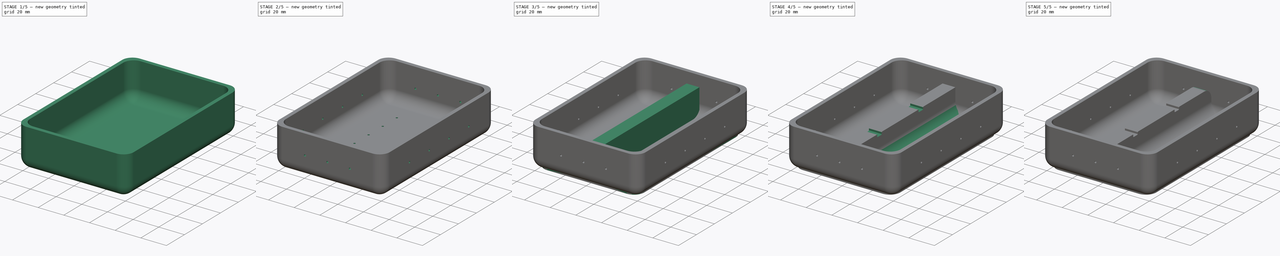
[diagram: build sequence overview — one tinted view per stage of 5, left to right]
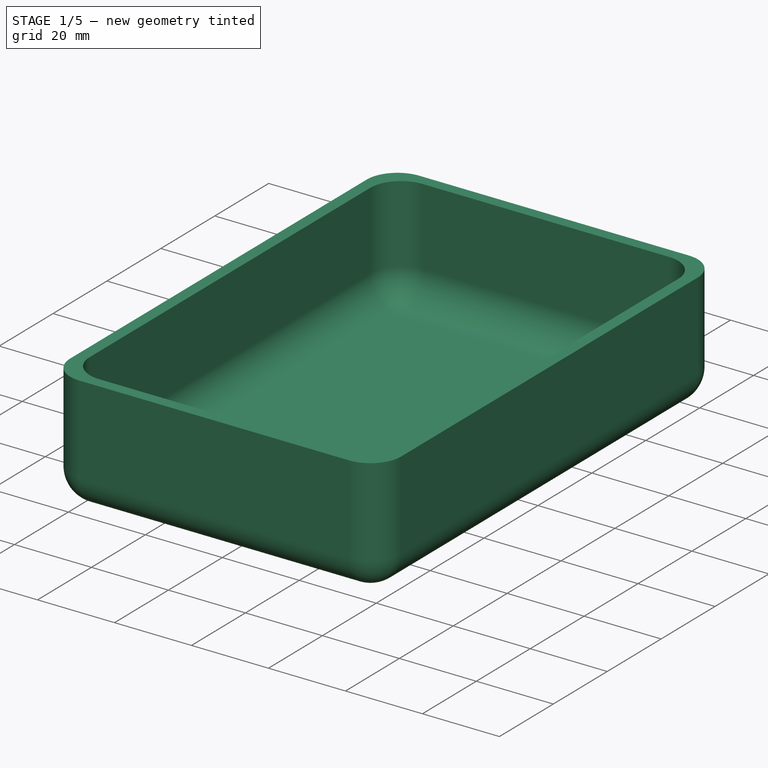
[diagram: stage 1 of 5 — iso view after this stage's code; geometry added in this stage tinted green]
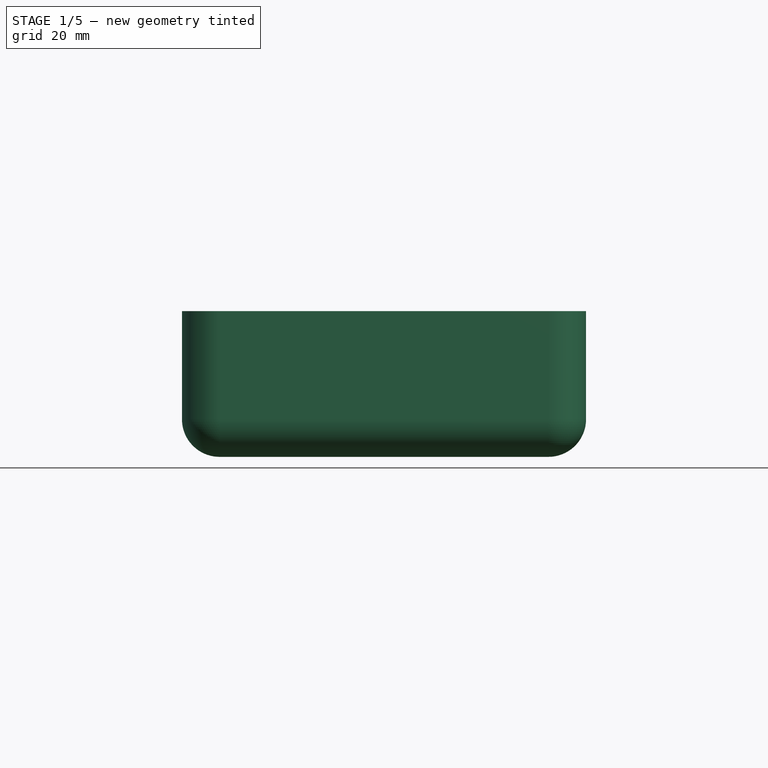
[diagram: stage 1 of 5 — front view after this stage's code; geometry added in this stage tinted green]
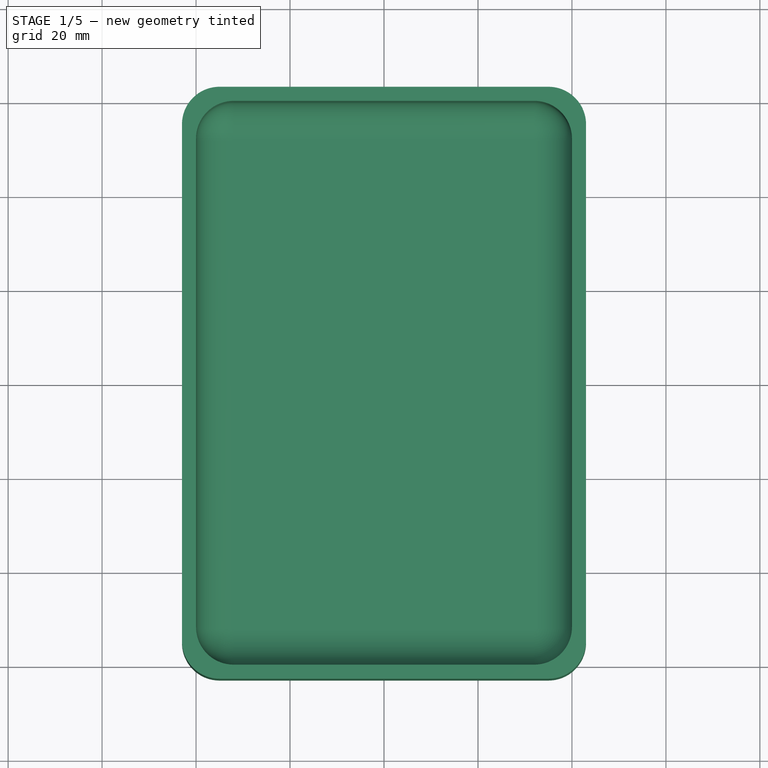
[diagram: stage 1 of 5 — top view after this stage's code; geometry added in this stage tinted green]
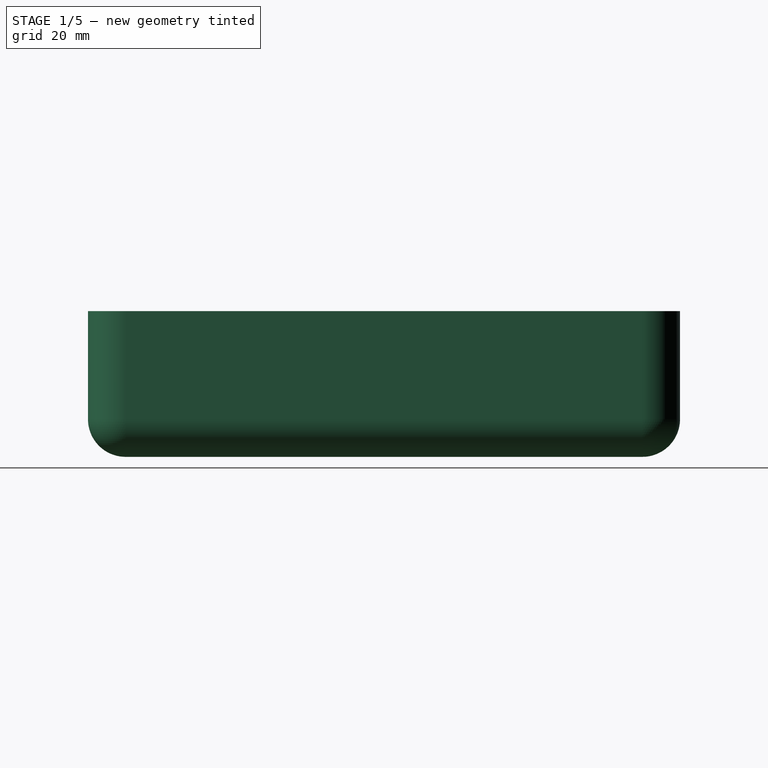
[diagram: stage 1 of 5 — right view after this stage's code; geometry added in this stage tinted green]
FCSTD DOCUMENT  (FreeCAD 0.19R24212 (Git))
Label: tempeh-mold-rectangle
License: All rights reserved
LicenseURL: http://en.wikipedia.org/wiki/All_rights_reserved
objects: Sketcher::SketchObject×9, PartDesign::Pocket×6, PartDesign::Fillet×5, PartDesign::Pad×3, PartDesign::Mirrored×2, PartDesign::Body×2, Spreadsheet::Sheet×1
note: 41 computed .brp shape members not serialized (recipe doc carries the construction recipe); baked Part::Feature solids carry a one-line shape summary decoded from their .brp

FEATURE [Spreadsheet::Sheet] Spreadsheet  label="d"
  cells = A1=thickness; B1(thickness)==3mm; A2=width; B2(width)==80mm; A3=height; B3(height)==28mm; A4=length; B4(length)==120mm; A5=filet; B5(filet)==8mm; A6=filet_sm; B6(filet_sm)==0.5mm; A7=handle_width; B7(handle_width)==10mm; A8=handle_height; B8(handle_height)==20mm; A9=slot_width; B9(slot_width)==5mm; A10=slot_height; B10(slot_height)==2mm; A11=holes_spacing; B11(holes_spacing)==20mm; A12=holes_dia; B12(holes_dia)==1.5mm; A13=inner_margin; B13(inner_margin)==2mm; A14=lid_holes_number; B14(lid_holes_number)=4; A15=lid_holes_spacing; B15(lid_holes_spacing)==(length - inner_margin) / (lid_holes_number + 1); A16=face_length_holes_number; B16(face_length_holes_number)=4; A17=face_length_holes_spacing; B17(face_length_holes_spacing)==(length + thickness * 2 - filet * 2) / (face_length_holes_number + 1); A18=face_width_holes_number; B18(face_width_holes_number)=3; A19=face_width_holes_spacing; B19(face_width_holes_spacing)==(width + thickness * 2 - filet * 2) / (face_width_holes_number + 1); A20=back_holes_number; B20(back_holes_number)=6; A21=back_holes_spacing; B21(back_holes_spacing)==(length + thickness * 2 - filet * 2) / (back_holes_number + 1); A23=outerwidth; B23(outerwidth)==width + thickness * 2; A24=outerlength; B24(outerlength)==length + thickness * 2; A25=outerheight; B25(outerheight)==height + thickness; A27=volume; B27==width * height * length
FEATURE [Sketcher::SketchObject] Sketch
  FullyConstrained = true
  MapMode = 5
  Support = -> [XY_Plane]
  expr: Constraints[7] = <<d>>.outerlength
  expr: Constraints[6] = <<d>>.outerwidth
  sketch-geometry (4):
    g0: LineSegment StartX=-43 StartY=63 StartZ=0 EndX=43 EndY=63 EndZ=0
    g1: LineSegment StartX=43 StartY=63 StartZ=0 EndX=43 EndY=-63 EndZ=0
    g2: LineSegment StartX=43 StartY=-63 StartZ=0 EndX=-43 EndY=-63 EndZ=0
    g3: LineSegment StartX=-43 StartY=-63 StartZ=0 EndX=-43 EndY=63 EndZ=0
  constraints (10):
    c: Coincident(g0,g1)
    c: Coincident(g1,g2)
    c: Coincident(g2,g3)
    c: Coincident(g3,g0)
    c: Horizontal(g2)
    c: Vertical(g1)
    c: DistanceX(g2,g2) = 86
    c: DistanceY(g3,g3) = 126
    c: Symmetric(g0,g0,g-2)
    c: Symmetric(g2,g0,g-1)
FEATURE [PartDesign::Pad] Pad
  Direction = (1,1,1)
  Length = 31
  Length2 = 100
  Profile = -> Sketch
  Type = 0
  expr: Length = <<d>>.outerheight
FEATURE [Sketcher::SketchObject] Sketch001
  FullyConstrained = true
  MapMode = 5
  Placement = pos=(0,0,31) rot=(0,0,1;0rad)
  Support = -> [Pad]
  expr: Constraints[9] = <<d>>.length
  expr: Constraints[8] = <<d>>.width
  sketch-geometry (4):
    g0: LineSegment StartX=-40 StartY=60 StartZ=0 EndX=40 EndY=60 EndZ=0
    g1: LineSegment StartX=40 StartY=60 StartZ=0 EndX=40 EndY=-60 EndZ=0
    g2: LineSegment StartX=40 StartY=-60 StartZ=0 EndX=-40 EndY=-60 EndZ=0
    g3: LineSegment StartX=-40 StartY=-60 StartZ=0 EndX=-40 EndY=60 EndZ=0
  constraints (10):
    c: Coincident(g0,g1)
    c: Coincident(g1,g2)
    c: Coincident(g2,g3)
    c: Coincident(g3,g0)
    c: Horizontal(g2)
    c: Vertical(g3)
    c: Symmetric(g0,g0,g-2)
    c: Symmetric(g0,g1,g-1)
    c: DistanceX(g2,g2) = 80
    c: DistanceY(g3,g3) = 120
FEATURE [PartDesign::Pocket] Pocket
  BaseFeature = -> Pad
  Length = 28
  Length2 = 100
  Profile = -> Sketch001
  Type = 0
  expr: Length = <<d>>.height
FEATURE [PartDesign::Fillet] Fillet
  Base = -> Pocket [Edge8,Edge20,Edge21,Edge23,Edge22,Edge24,Edge17,Edge19,Edge18,Edge2,Edge1,Edge5,Edge6,Edge3,Edge9,Edge11]
  BaseFeature = -> Pocket
  Radius = 8
  SupportTransform = false
  expr: Radius = <<d>>.filet
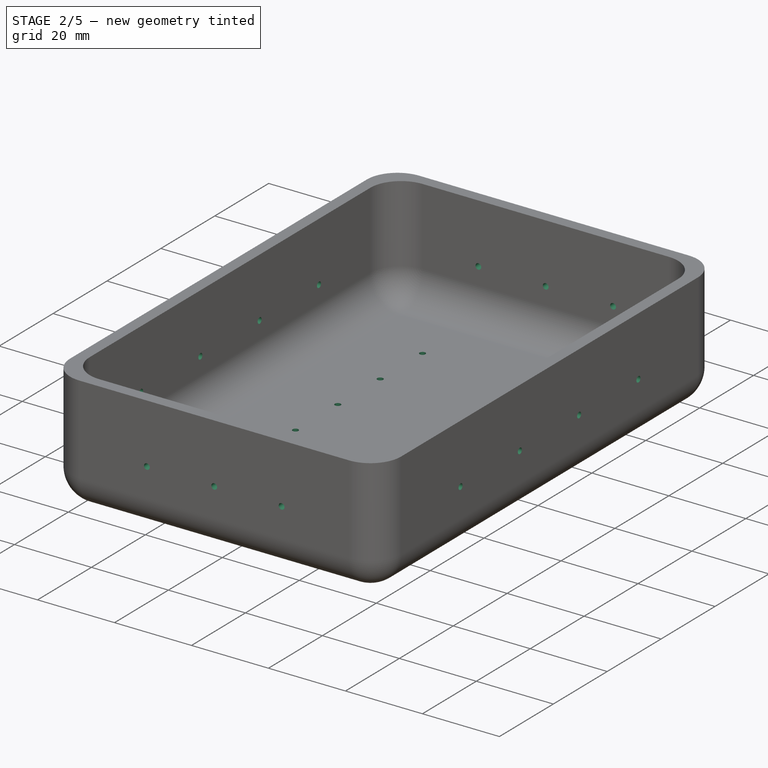
[diagram: stage 2 of 5 — iso view after this stage's code; geometry added in this stage tinted green]
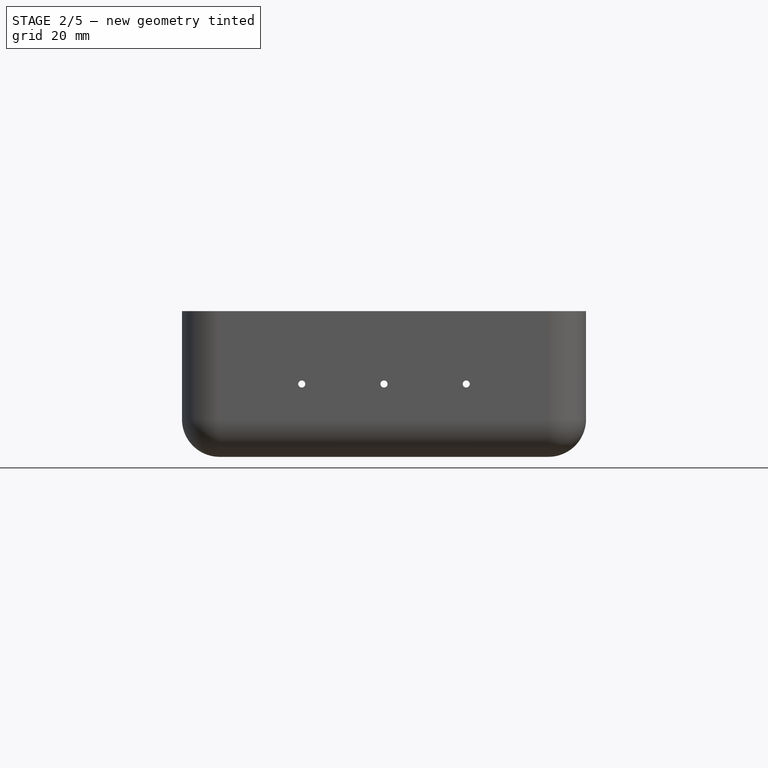
[diagram: stage 2 of 5 — front view after this stage's code; geometry added in this stage tinted green]
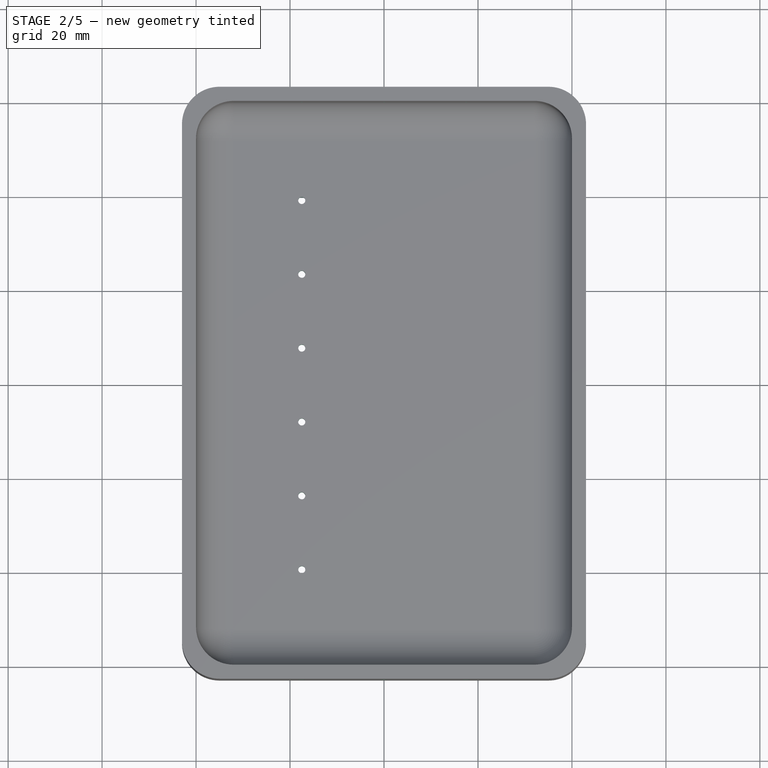
[diagram: stage 2 of 5 — top view after this stage's code; geometry added in this stage tinted green]
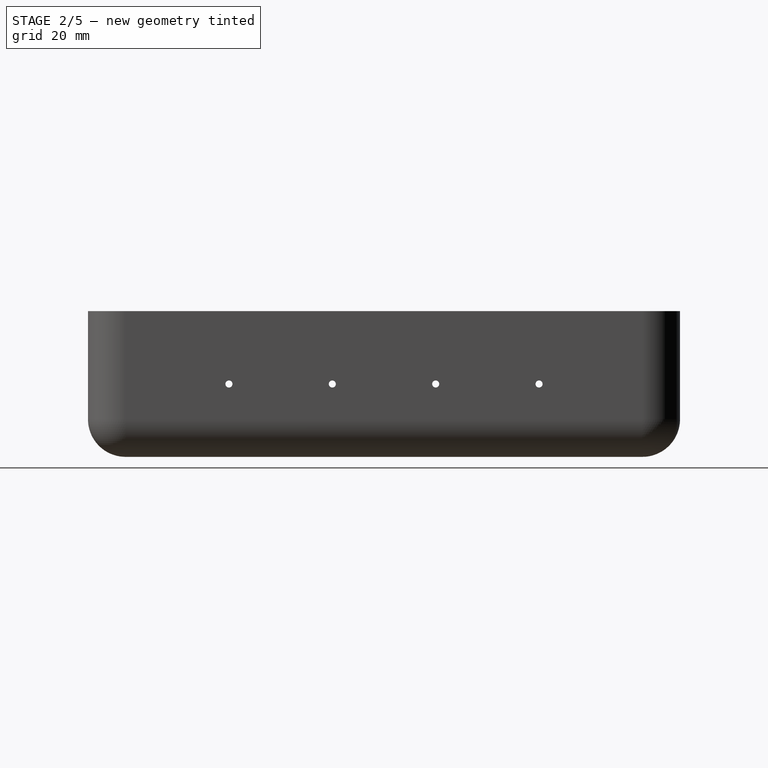
[diagram: stage 2 of 5 — right view after this stage's code; geometry added in this stage tinted green]
FEATURE [PartDesign::Body] Body001  label="lid"
  Group = -> [Sketch002,Pad001,Sketch003,Pad002,Fillet001,Fillet002,Sketch004,Pocket001,Fillet003,Fillet004,Sketch005,Pocket002,Mirrored]
  Origin = -> Origin001
  Placement = pos=(0,0,56) rot=(0,0,1;0rad)
  Tip = -> Mirrored
FEATURE [Sketcher::SketchObject] Sketch006
  ExternalGeometry = -> [Fillet]
  FullyConstrained = false
  MapMode = 5
  Placement = pos=(-43,0,0) rot=(0.57735,-0.57735,-0.57735;2.0944rad)
  Support = -> [Fillet]
  expr: Constraints[7] = <<d>>.holes_dia
  expr: Constraints[13] = <<d>>.face_length_holes_spacing
  expr: Constraints[12] = <<d>>.face_length_holes_spacing
  expr: Constraints[14] = <<d>>.face_length_holes_spacing
  expr: Constraints[15] = <<d>>.face_length_holes_spacing
  sketch-geometry (6):
    g0: LineSegment StartX=-55 StartY=15.5 StartZ=0 EndX=55 EndY=15.5 EndZ=0
    g1: LineSegment StartX=0 StartY=31 StartZ=0 EndX=0 EndY=0 EndZ=0
    g2: Circle CenterX=-33 CenterY=15.5 CenterZ=0 NormalX=0 NormalY=0 NormalZ=1 AngleXU=0 Radius=0.75
    g3: Circle CenterX=33 CenterY=15.5 CenterZ=0 NormalX=0 NormalY=0 NormalZ=1 AngleXU=0 Radius=0.75
    g4: Circle CenterX=-11 CenterY=15.5 CenterZ=0 NormalX=0 NormalY=0 NormalZ=1 AngleXU=0 Radius=0.75
    g5: Circle CenterX=11 CenterY=15.5 CenterZ=0 NormalX=0 NormalY=0 NormalZ=1 AngleXU=0 Radius=0.75
  constraints (16):
    c: PointOnObject(g0,g-3)
    c: PointOnObject(g0,g-4)
    c: Horizontal(g0)
    c: PointOnObject(g1,g-5)
    c: Coincident(g1,g-1)
    c: Symmetric(g1,g-1,g0)
    c: PointOnObject(g2,g0)
    c: Diameter(g2) = 1.5
    c: Equal(g2,g3) = 1.5
    c: PointOnObject(g3,g0)
    c: PointOnObject(g4,g0)
    c: PointOnObject(g5,g0)
    c: DistanceX(g0,g2) = 22
    c: DistanceX(g2,g4) = 22
    c: DistanceX(g4,g5) = 22
    c: DistanceX(g5,g3) = 22
FEATURE [PartDesign::Pocket] Pocket003
  BaseFeature = -> Fillet
  Length = 5
  Length2 = 100
  Profile = -> Sketch006
  Type = 1
FEATURE [Sketcher::SketchObject] Sketch007
  ExternalGeometry = -> [Pocket003]
  FullyConstrained = true
  MapMode = 5
  Placement = pos=(0,-63,0) rot=(1,0,0;1.5708rad)
  Support = -> [Pocket003]
  expr: Constraints[7] = <<d>>.holes_dia
  expr: Constraints[13] = <<d>>.face_width_holes_spacing
  expr: Constraints[10] = <<d>>.face_width_holes_spacing
  expr: Constraints[11] = <<d>>.face_width_holes_spacing
  sketch-geometry (5):
    g0: LineSegment StartX=-35 StartY=15.5 StartZ=0 EndX=35 EndY=15.5 EndZ=0
    g1: LineSegment StartX=0 StartY=31 StartZ=0 EndX=0 EndY=0 EndZ=0
    g2: Circle CenterX=-17.5 CenterY=15.5 CenterZ=0 NormalX=0 NormalY=0 NormalZ=1 AngleXU=0 Radius=0.75
    g3: Circle CenterX=7e-16 CenterY=15.5 CenterZ=0 NormalX=0 NormalY=0 NormalZ=1 AngleXU=0 Radius=0.75
    g4: Circle CenterX=17.5 CenterY=15.5 CenterZ=0 NormalX=0 NormalY=0 NormalZ=1 AngleXU=0 Radius=0.75
  constraints (15):
    c: PointOnObject(g0,g-3)
    c: PointOnObject(g0,g-4)
    c: PointOnObject(g1,g-5)
    c: Coincident(g1,g-1)
    c: Symmetric(g0,g0,g1)
    c: Symmetric(g1,g-1,g0)
    c: PointOnObject(g2,g0)
    c: Diameter(g2) = 1.5
    c: Equal(g2,g3) = 1.5
    c: PointOnObject(g3,g0)
    c: DistanceX(g0,g2) = 17.5
    c: DistanceX(g2,g3) = 17.5
    c: PointOnObject(g4,g0)
    c: DistanceX(g3,g4) = 17.5
    c: Equal(g4,g3)
FEATURE [PartDesign::Pocket] Pocket004
  BaseFeature = -> Pocket003
  Length = 5
  Length2 = 100
  Profile = -> Sketch007
  Type = 1
FEATURE [Sketcher::SketchObject] Sketch008
  ExternalGeometry = -> [Pocket004]
  FullyConstrained = true
  MapMode = 5
  Placement = pos=(0,0,0) rot=(1,0,0;3.14159rad)
  Support = -> [Pocket004]
  expr: Constraints[19] = <<d>>.back_holes_spacing
  expr: Constraints[18] = <<d>>.back_holes_spacing
  expr: Constraints[15] = <<d>>.back_holes_spacing
  expr: Constraints[14] = <<d>>.back_holes_spacing
  expr: Constraints[8] = <<d>>.back_holes_spacing
  expr: Constraints[13] = <<d>>.back_holes_spacing
  expr: Constraints[7] = <<d>>.holes_dia
  sketch-geometry (8):
    g0: LineSegment StartX=-17.5 StartY=55 StartZ=0 EndX=-17.5 EndY=-55 EndZ=0
    g1: LineSegment StartX=-35 StartY=0 StartZ=0 EndX=0 EndY=0 EndZ=0
    g2: Circle CenterX=-17.5 CenterY=39.2857 CenterZ=0 NormalX=0 NormalY=0 NormalZ=1 AngleXU=0 Radius=0.75
    g3: Circle CenterX=-17.5 CenterY=23.5714 CenterZ=0 NormalX=0 NormalY=0 NormalZ=1 AngleXU=0 Radius=0.75
    g4: Circle CenterX=-17.5 CenterY=7.85714 CenterZ=0 NormalX=0 NormalY=0 NormalZ=1 AngleXU=0 Radius=0.75
    g5: Circle CenterX=-17.5 CenterY=-7.85714 CenterZ=0 NormalX=0 NormalY=0 NormalZ=1 AngleXU=0 Radius=0.75
    g6: Circle CenterX=-17.5 CenterY=-23.5714 CenterZ=0 NormalX=0 NormalY=0 NormalZ=1 AngleXU=0 Radius=0.75
    g7: Circle CenterX=-17.5 CenterY=-39.2857 CenterZ=0 NormalX=0 NormalY=0 NormalZ=1 AngleXU=0 Radius=0.75
  constraints (24):
    c: PointOnObject(g0,g-3)
    c: PointOnObject(g0,g-5)
    c: Vertical(g0)
    c: PointOnObject(g1,g-4)
    c: Coincident(g1,g-1)
    c: Symmetric(g1,g-1,g0)
    c: PointOnObject(g2,g0)
    c: Diameter(g2) = 1.5
    c: DistanceY(g2,g0) = 15.7143
    c: Equal(g2,g3) = 1.5
    c: PointOnObject(g3,g0)
    c: PointOnObject(g4,g0)
    c: PointOnObject(g5,g0)
    c: DistanceY(g3,g2) = 15.7143
    c: DistanceY(g4,g3) = 15.7143
    c: DistanceY(g5,g4) = 15.7143
    c: PointOnObject(g6,g0)
    c: PointOnObject(g7,g0)
    c: DistanceY(g6,g5) = 15.7143
    c: DistanceY(g7,g6) = 15.7143
    c: Equal(g4,g5)
    c: Equal(g5,g6)
    c: Equal(g6,g7)
    c: Equal(g7,g2)
FEATURE [PartDesign::Pocket] Pocket005
  BaseFeature = -> Pocket004
  Length = 5
  Length2 = 100
  Profile = -> Sketch008
  Type = 1
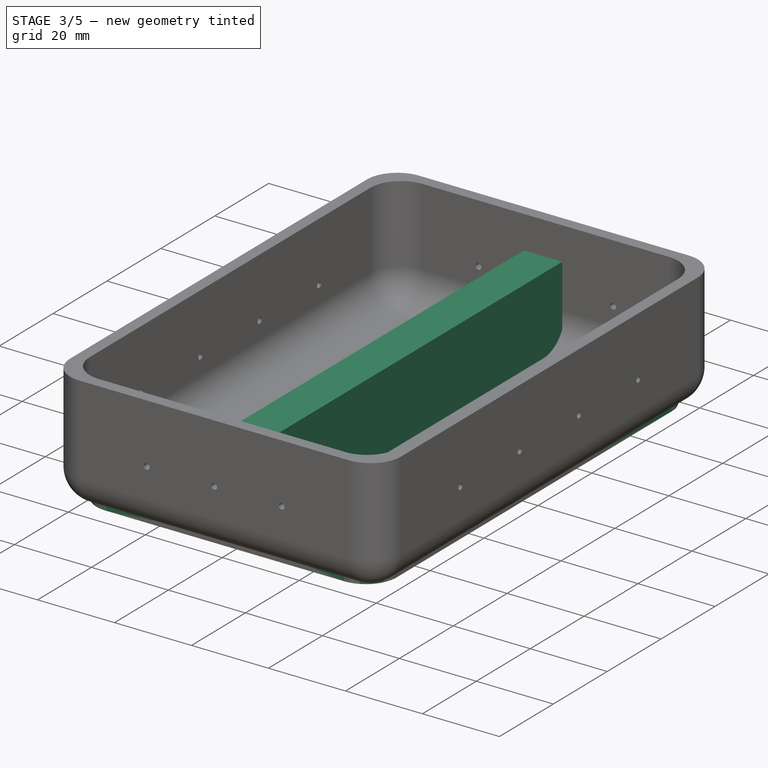
[diagram: stage 3 of 5 — iso view after this stage's code; geometry added in this stage tinted green]
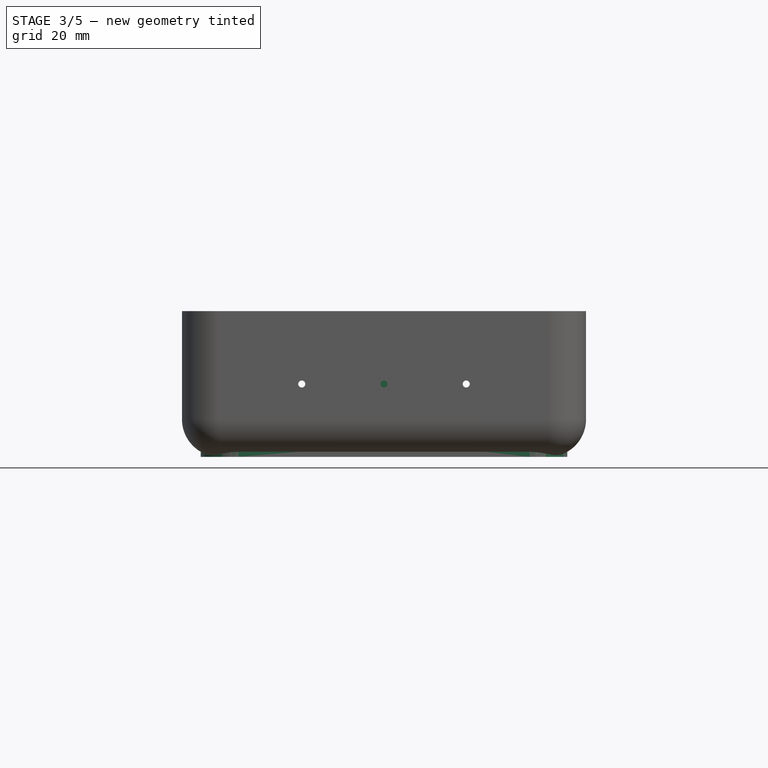
[diagram: stage 3 of 5 — front view after this stage's code; geometry added in this stage tinted green]
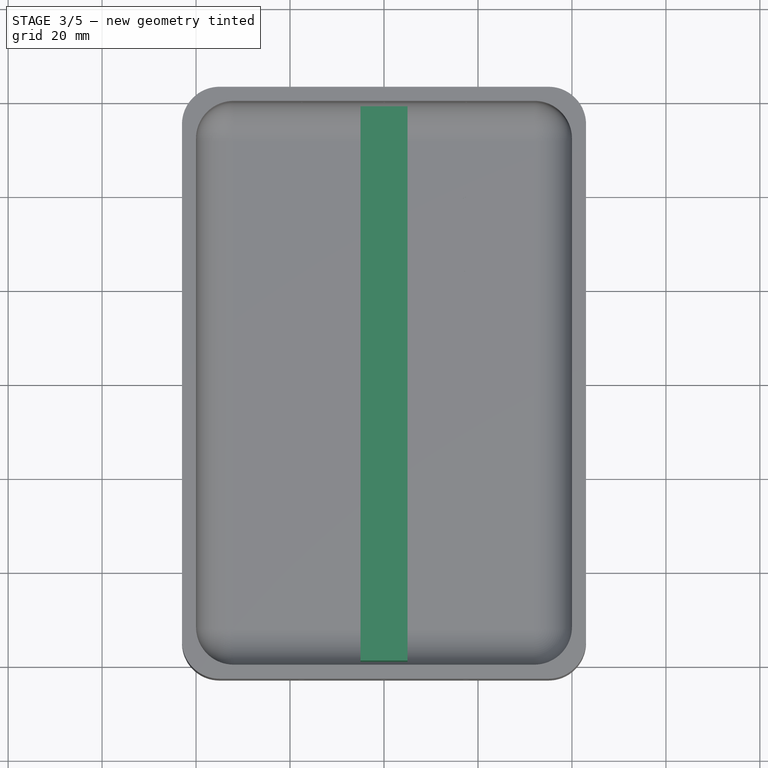
[diagram: stage 3 of 5 — top view after this stage's code; geometry added in this stage tinted green]
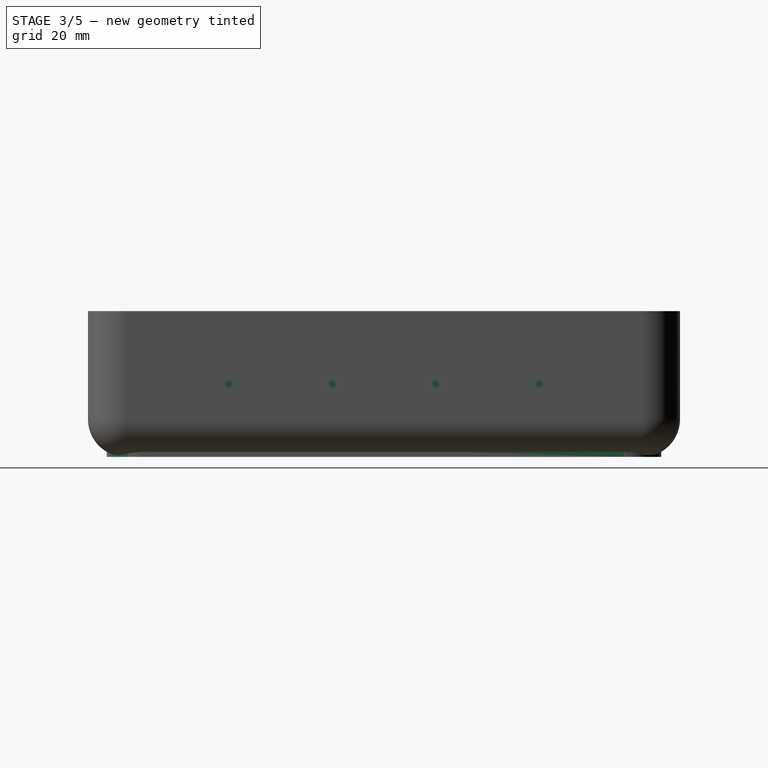
[diagram: stage 3 of 5 — right view after this stage's code; geometry added in this stage tinted green]
FEATURE [Sketcher::SketchObject] Sketch002
  FullyConstrained = true
  MapMode = 5
  Support = -> [XY_Plane001]
  expr: Constraints[7] = <<d>>.length - <<d>>.inner_margin
  expr: Constraints[6] = <<d>>.width - <<d>>.inner_margin
  sketch-geometry (4):
    g0: LineSegment StartX=-39 StartY=59 StartZ=0 EndX=39 EndY=59 EndZ=0
    g1: LineSegment StartX=39 StartY=59 StartZ=0 EndX=39 EndY=-59 EndZ=0
    g2: LineSegment StartX=39 StartY=-59 StartZ=0 EndX=-39 EndY=-59 EndZ=0
    g3: LineSegment StartX=-39 StartY=-59 StartZ=0 EndX=-39 EndY=59 EndZ=0
  constraints (10):
    c: Coincident(g0,g1)
    c: Coincident(g1,g2)
    c: Coincident(g2,g3)
    c: Coincident(g3,g0)
    c: Horizontal(g2)
    c: Vertical(g1)
    c: DistanceX(g0,g0) = 78
    c: DistanceY(g3,g3) = 118
    c: Symmetric(g0,g0,g-2)
    c: Symmetric(g2,g0,g-1)
FEATURE [PartDesign::Pad] Pad001
  Direction = (1,1,1)
  Length = 3
  Length2 = 100
  Profile = -> Sketch002
  Type = 0
  expr: Length = <<d>>.thickness
FEATURE [Sketcher::SketchObject] Sketch003
  FullyConstrained = true
  MapMode = 5
  Placement = pos=(0,0,3) rot=(0,0,1;0rad)
  Support = -> [Pad001]
  expr: Constraints[7] = <<d>>.handle_width
  expr: Constraints[6] = <<d>>.length - <<d>>.inner_margin
  sketch-geometry (4):
    g0: LineSegment StartX=-5 StartY=59 StartZ=0 EndX=5 EndY=59 EndZ=0
    g1: LineSegment StartX=5 StartY=59 StartZ=0 EndX=5 EndY=-59 EndZ=0
    g2: LineSegment StartX=5 StartY=-59 StartZ=0 EndX=-5 EndY=-59 EndZ=0
    g3: LineSegment StartX=-5 StartY=-59 StartZ=0 EndX=-5 EndY=59 EndZ=0
  constraints (10):
    c: Coincident(g0,g1)
    c: Coincident(g1,g2)
    c: Coincident(g2,g3)
    c: Coincident(g3,g0)
    c: Horizontal(g2)
    c: Vertical(g1)
    c: DistanceY(g3,g3) = 118
    c: DistanceX(g0,g0) = 10
    c: Symmetric(g0,g0,g-2)
    c: Symmetric(g2,g0,g-1)
FEATURE [PartDesign::Pad] Pad002
  BaseFeature = -> Pad001
  Direction = (1,1,1)
  Length = 20
  Length2 = 100
  Profile = -> Sketch003
  Type = 0
  expr: Length = <<d>>.handle_height
FEATURE [PartDesign::Fillet] Fillet001
  Base = -> Pad002 [Edge10,Edge2,Edge1,Edge7]
  BaseFeature = -> Pad002
  Radius = 8
  SupportTransform = false
  expr: Radius = <<d>>.filet
FEATURE [PartDesign::Mirrored] Mirrored001
  BaseFeature = -> Pocket005
  MirrorPlane = -> Sketch008 [V_Axis]
  Originals = -> [Pocket005]
FEATURE [PartDesign::Body] Body  label="box"
  Group = -> [Sketch,Pad,Sketch001,Pocket,Fillet,Sketch006,Pocket003,Sketch007,Pocket004,Sketch008,Pocket005,Mirrored001]
  Origin = -> Origin
  Tip = -> Mirrored001
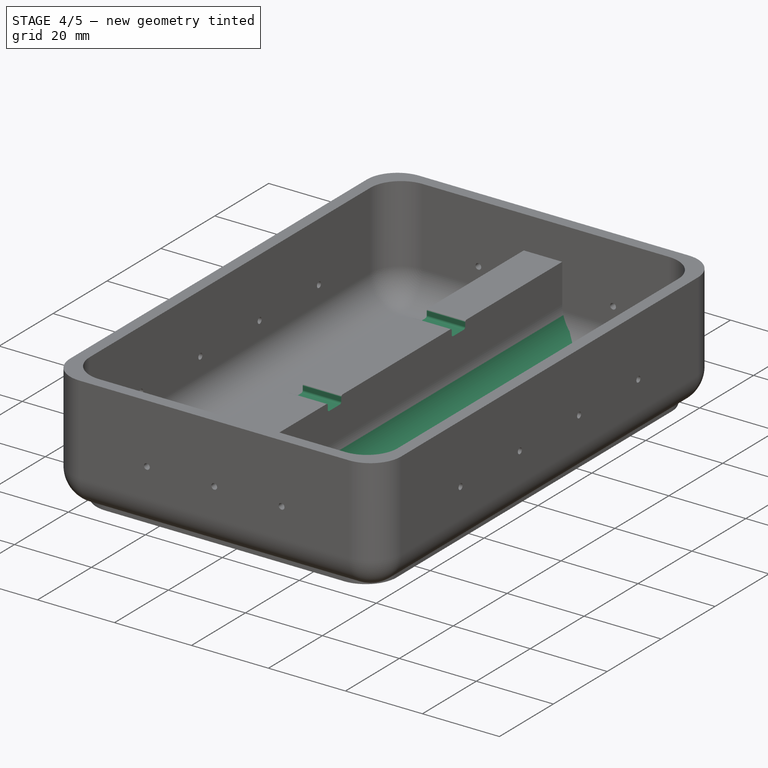
[diagram: stage 4 of 5 — iso view after this stage's code; geometry added in this stage tinted green]
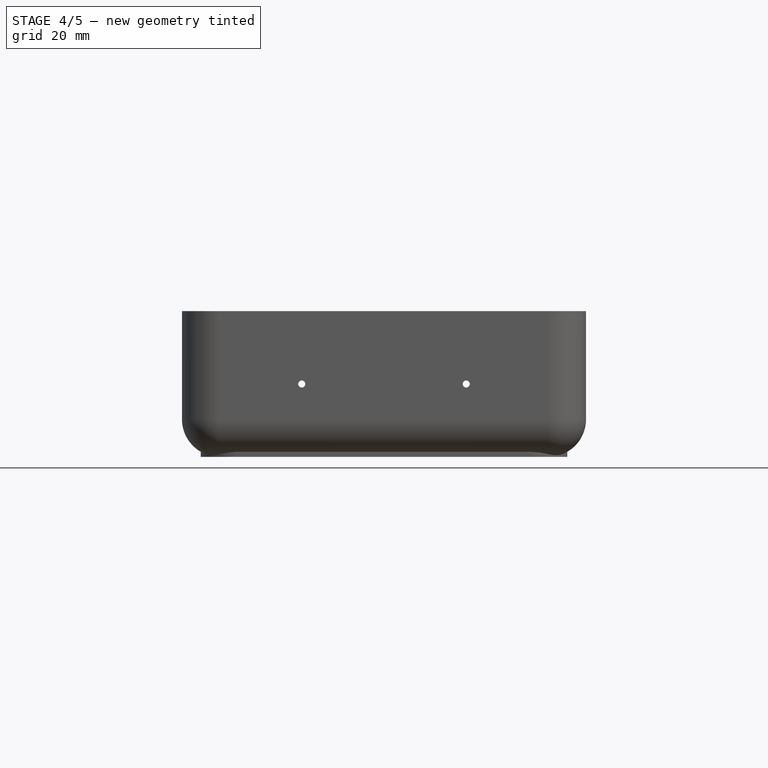
[diagram: stage 4 of 5 — front view after this stage's code; geometry added in this stage tinted green]
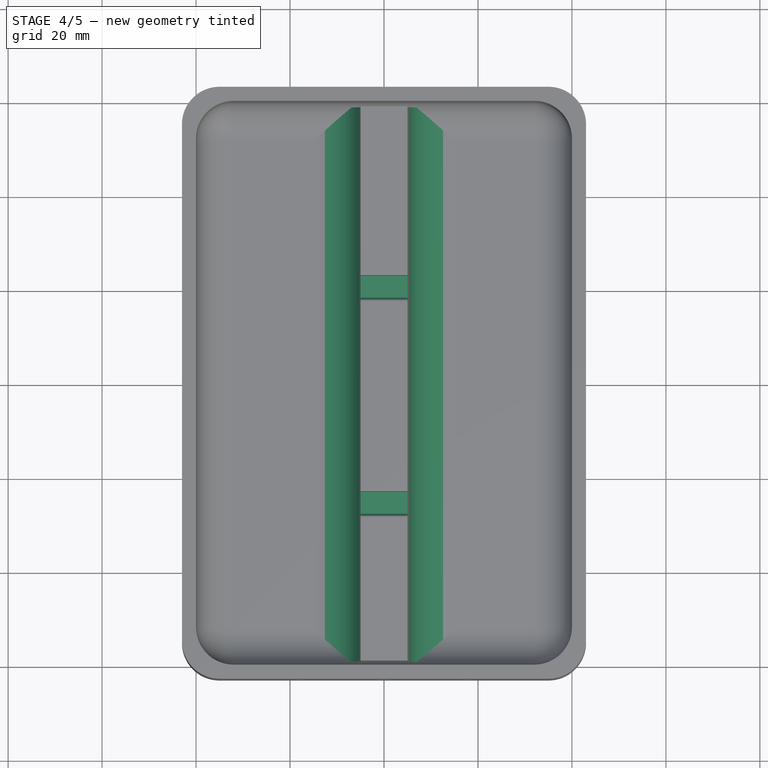
[diagram: stage 4 of 5 — top view after this stage's code; geometry added in this stage tinted green]
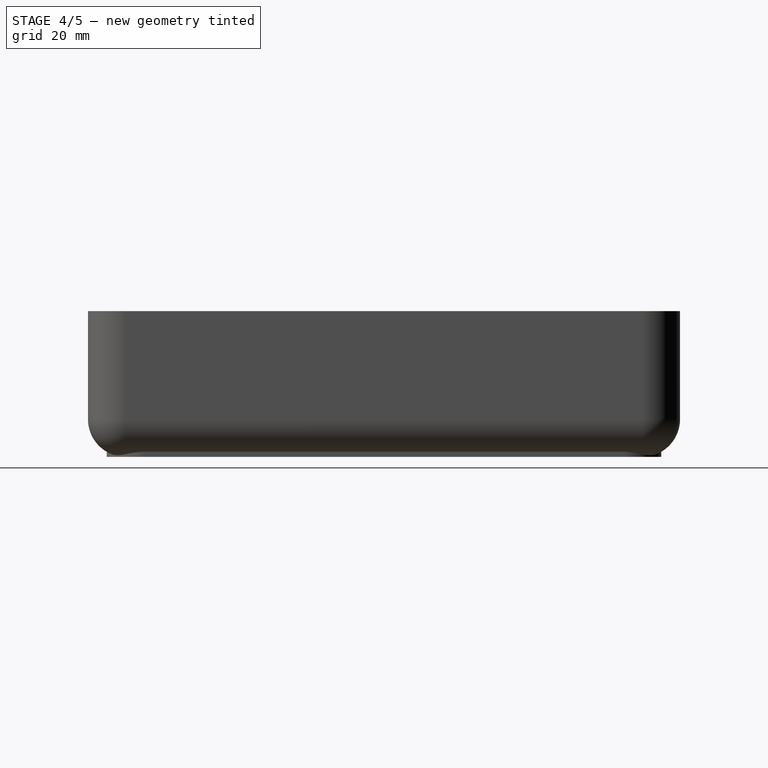
[diagram: stage 4 of 5 — right view after this stage's code; geometry added in this stage tinted green]
FEATURE [PartDesign::Fillet] Fillet002
  Base = -> Fillet001 [Edge21,Edge24]
  BaseFeature = -> Fillet001
  Radius = 10
  SupportTransform = false
  expr: Radius = <<d>>.handle_height * 0.5
FEATURE [Sketcher::SketchObject] Sketch004
  ExternalGeometry = -> [Fillet002]
  FullyConstrained = true
  MapMode = 5
  Placement = pos=(0,0,23) rot=(0,0,1;0rad)
  Support = -> [Fillet002]
  expr: Constraints[24] = (<<d>>.length - 2mm - <<d>>.slot_width * 2) / 3
  expr: Constraints[9] = <<d>>.slot_width
  expr: Constraints[8] = <<d>>.handle_width
  sketch-geometry (10):
    g0: LineSegment StartX=-5 StartY=23 StartZ=0 EndX=5 EndY=23 EndZ=0
    g1: LineSegment StartX=5 StartY=23 StartZ=0 EndX=5 EndY=18 EndZ=0
    g2: LineSegment StartX=5 StartY=18 StartZ=0 EndX=-5 EndY=18 EndZ=0
    g3: LineSegment StartX=-5 StartY=18 StartZ=0 EndX=-5 EndY=23 EndZ=0
    g4: LineSegment StartX=-5 StartY=-28 StartZ=0 EndX=5 EndY=-28 EndZ=0
    g5: LineSegment StartX=5 StartY=-28 StartZ=0 EndX=5 EndY=-23 EndZ=0
    g6: LineSegment StartX=5 StartY=-23 StartZ=0 EndX=-5 EndY=-23 EndZ=0
    g7: LineSegment StartX=-5 StartY=-23 StartZ=0 EndX=-5 EndY=-28 EndZ=0
    g8: LineSegment StartX=-5 StartY=59 StartZ=0 EndX=-5 EndY=23 EndZ=0
    g9: LineSegment StartX=-5 StartY=-23 StartZ=0 EndX=-5 EndY=-59 EndZ=0
  constraints (26):
    c: Coincident(g0,g1)
    c: Coincident(g1,g2)
    c: Coincident(g2,g3)
    c: Coincident(g3,g0)
    c: Horizontal(g2)
    c: Vertical(g1)
    c: Vertical(g3)
    c: Symmetric(g0,g0,g-2)
    c: DistanceX(g0,g0) = 10
    c: DistanceY(g3,g3) = 5
    c: Coincident(g4,g5)
    c: Coincident(g5,g6)
    c: Coincident(g6,g7)
    c: Coincident(g7,g4)
    c: Horizontal(g6)
    c: Vertical(g5)
    c: Vertical(g7)
    c: Equal(g4,g0)
    c: Equal(g3,g7)
    c: Symmetric(g4,g4,g-2)
    c: Coincident(g8,g-3)
    c: Coincident(g8,g0)
    c: Coincident(g9,g6)
    c: Coincident(g9,g-4)
    c: DistanceY(g8,g8) = 36
    c: Equal(g9,g8)
FEATURE [PartDesign::Pocket] Pocket001
  BaseFeature = -> Fillet002
  Length = 2
  Length2 = 100
  Profile = -> Sketch004
  Type = 0
  expr: Length = <<d>>.slot_height
FEATURE [PartDesign::Fillet] Fillet003
  Base = -> Pocket001 [Edge51,Edge66,Edge68,Edge67,Edge69,Edge70,Edge71,Edge72]
  BaseFeature = -> Pocket001
  Radius = 0.5
  SupportTransform = false
  expr: Radius = <<d>>.filet_sm
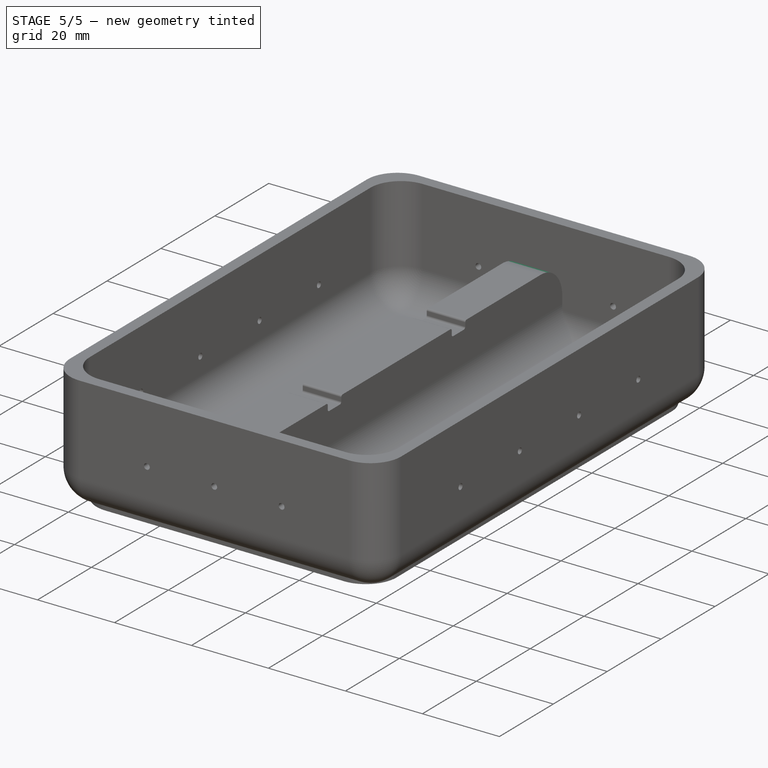
[diagram: stage 5 of 5 — iso view after this stage's code; geometry added in this stage tinted green]
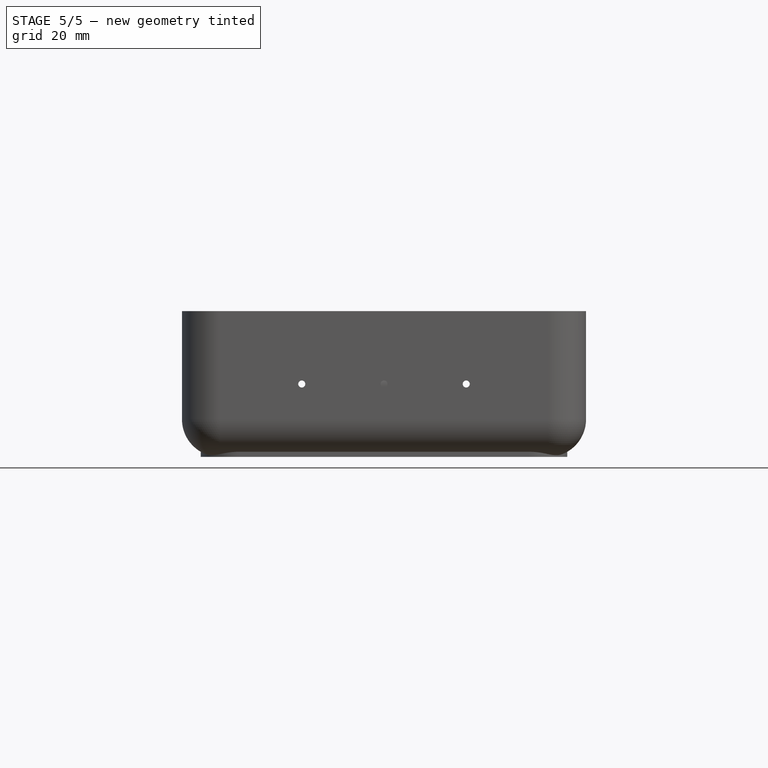
[diagram: stage 5 of 5 — front view after this stage's code; geometry added in this stage tinted green]
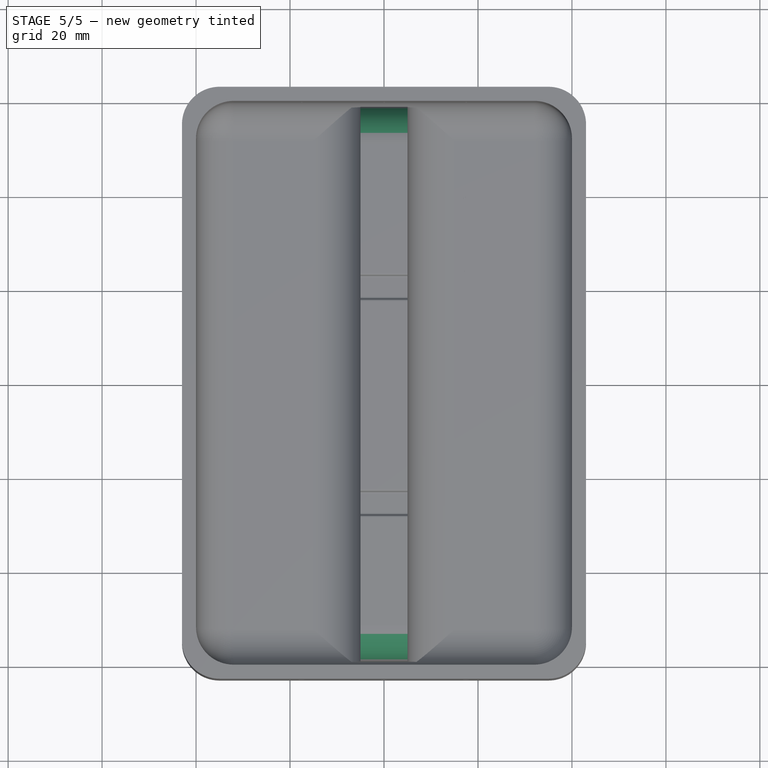
[diagram: stage 5 of 5 — top view after this stage's code; geometry added in this stage tinted green]
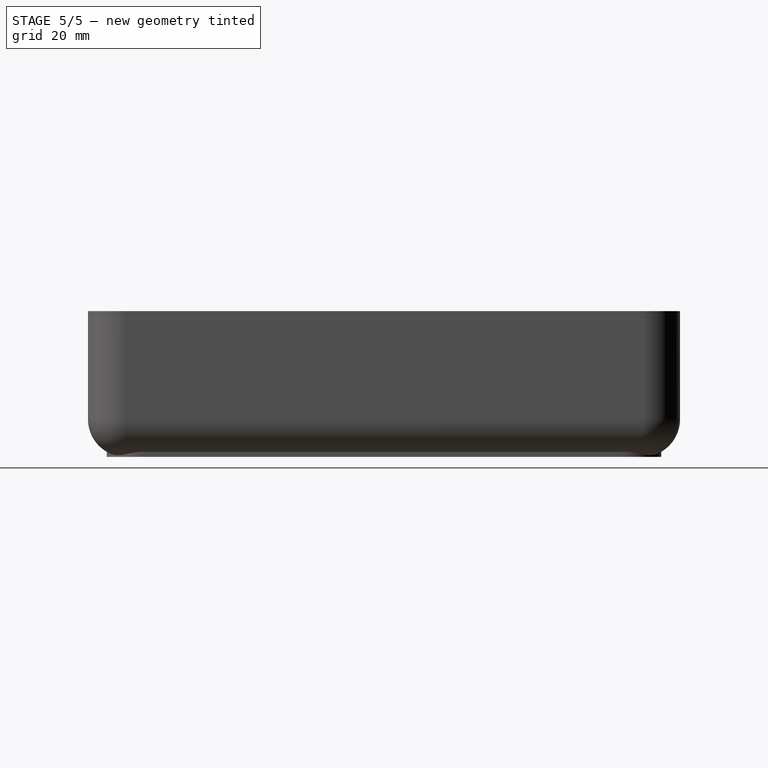
[diagram: stage 5 of 5 — right view after this stage's code; geometry added in this stage tinted green]
FEATURE [PartDesign::Fillet] Fillet004
  Base = -> Fillet003 [Edge22,Edge40]
  BaseFeature = -> Fillet003
  Radius = 8
  SupportTransform = false
  expr: Radius = <<d>>.filet
FEATURE [Sketcher::SketchObject] Sketch005
  ExternalGeometry = -> [Fillet004]
  FullyConstrained = true
  MapMode = 5
  Placement = pos=(0,0,3) rot=(0,0,1;0rad)
  Support = -> [Fillet004]
  expr: Constraints[8] = <<d>>.holes_dia
  expr: Constraints[16] = <<d>>.lid_holes_spacing
  expr: Constraints[11] = <<d>>.lid_holes_spacing
  expr: Constraints[12] = <<d>>.lid_holes_spacing
  expr: Constraints[15] = <<d>>.lid_holes_spacing
  sketch-geometry (6):
    g0: LineSegment StartX=-27 StartY=59 StartZ=0 EndX=-27 EndY=-59 EndZ=0
    g1: LineSegment StartX=-39 StartY=0 StartZ=0 EndX=-15 EndY=0 EndZ=0
    g2: Circle CenterX=-27 CenterY=35.4 CenterZ=0 NormalX=0 NormalY=0 NormalZ=1 AngleXU=0 Radius=0.75
    g3: Circle CenterX=-27 CenterY=11.8 CenterZ=0 NormalX=0 NormalY=0 NormalZ=1 AngleXU=0 Radius=0.75
    g4: Circle CenterX=-27 CenterY=-11.8 CenterZ=0 NormalX=0 NormalY=0 NormalZ=1 AngleXU=0 Radius=0.75
    g5: Circle CenterX=-27 CenterY=-35.4 CenterZ=0 NormalX=0 NormalY=0 NormalZ=1 AngleXU=0 Radius=0.75
  constraints (19):
    c: PointOnObject(g0,g-3)
    c: PointOnObject(g0,g-4)
    c: Vertical(g0)
    c: PointOnObject(g1,g-5)
    c: PointOnObject(g1,g-6)
    c: Symmetric(g1,g1,g0)
    c: PointOnObject(g1,g-1)
    c: PointOnObject(g2,g0)
    c: Diameter(g2) = 1.5
    c: Equal(g2,g3) = 1.5
    c: PointOnObject(g3,g0)
    c: DistanceY(g2,g0) = 23.6
    c: DistanceY(g3,g2) = 23.6
    c: PointOnObject(g4,g0)
    c: PointOnObject(g5,g0)
    c: DistanceY(g4,g3) = 23.6
    c: DistanceY(g5,g4) = 23.6
    c: Equal(g4,g5)
    c: Equal(g5,g2)
FEATURE [PartDesign::Pocket] Pocket002
  BaseFeature = -> Fillet004
  Length = 3
  Length2 = 100
  Profile = -> Sketch005
  Type = 0
  expr: Length = <<d>>.thickness
FEATURE [PartDesign::Mirrored] Mirrored
  BaseFeature = -> Pocket002
  MirrorPlane = -> Sketch005 [V_Axis]
  Originals = -> [Pocket002]
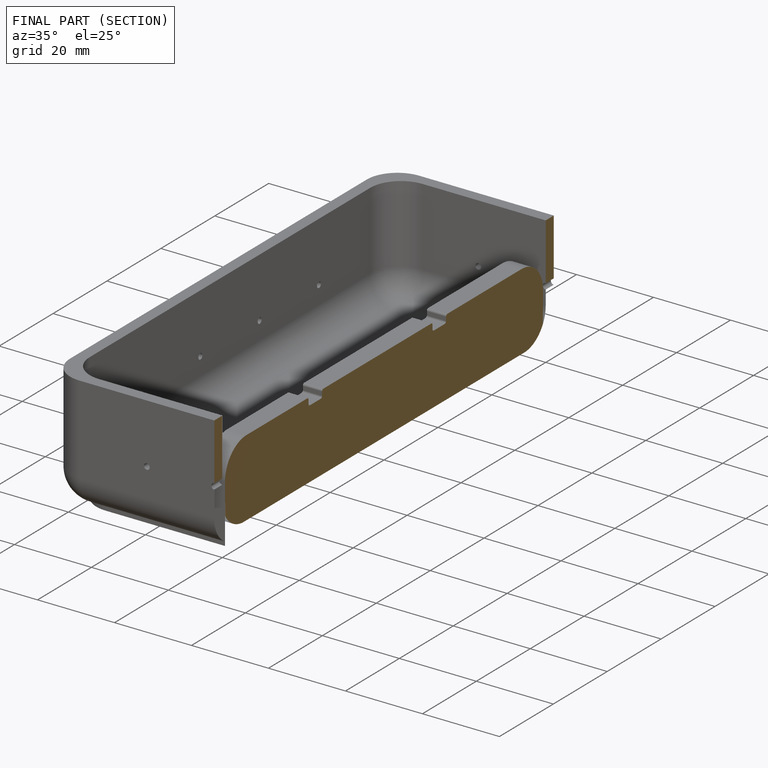
[diagram: finished part — half-section view (interior)]
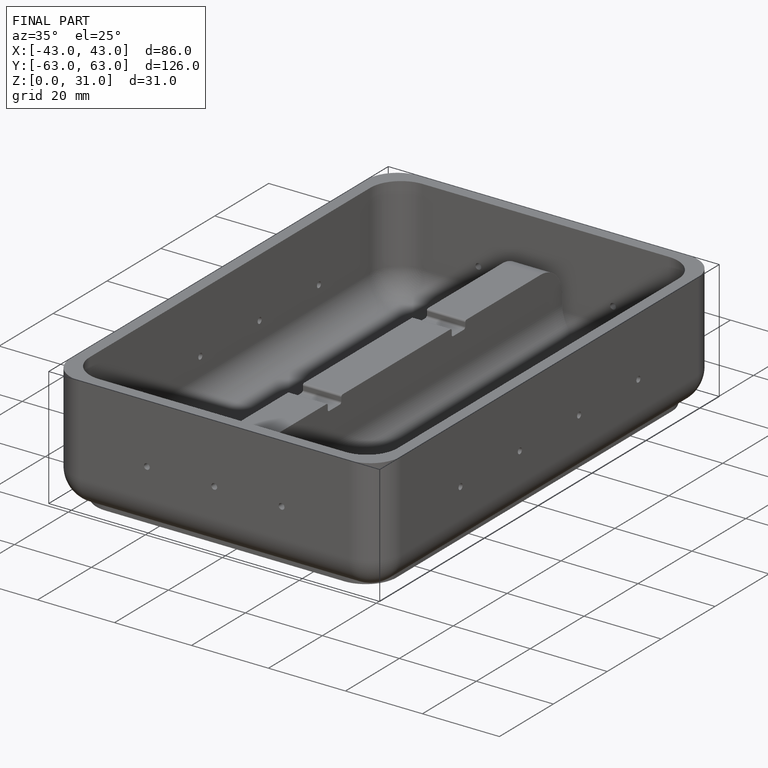
[diagram: finished part — iso view with bounding-box wireframe]
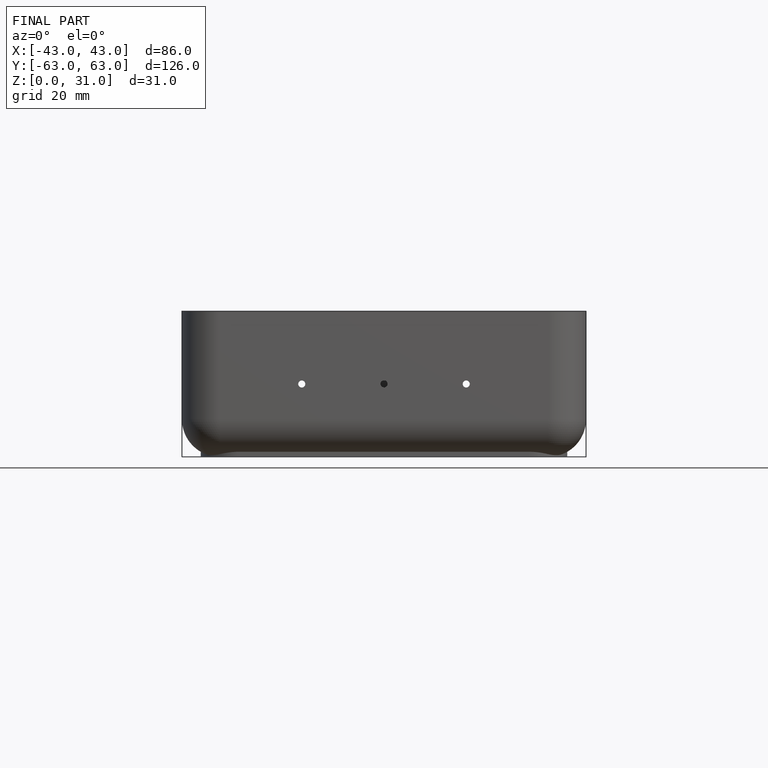
[diagram: finished part — front view with bounding-box wireframe]
